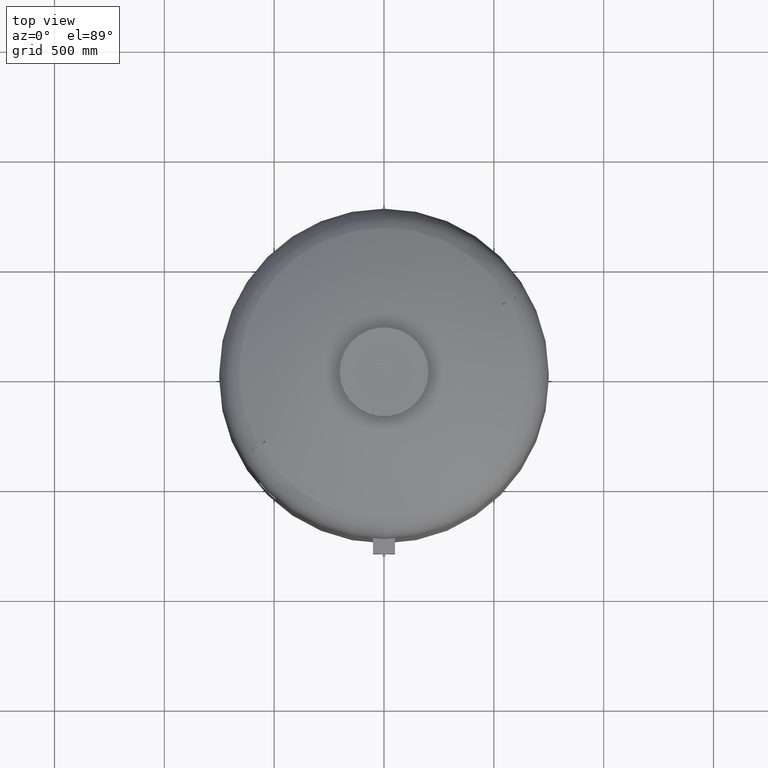
[diagram: clean part render]
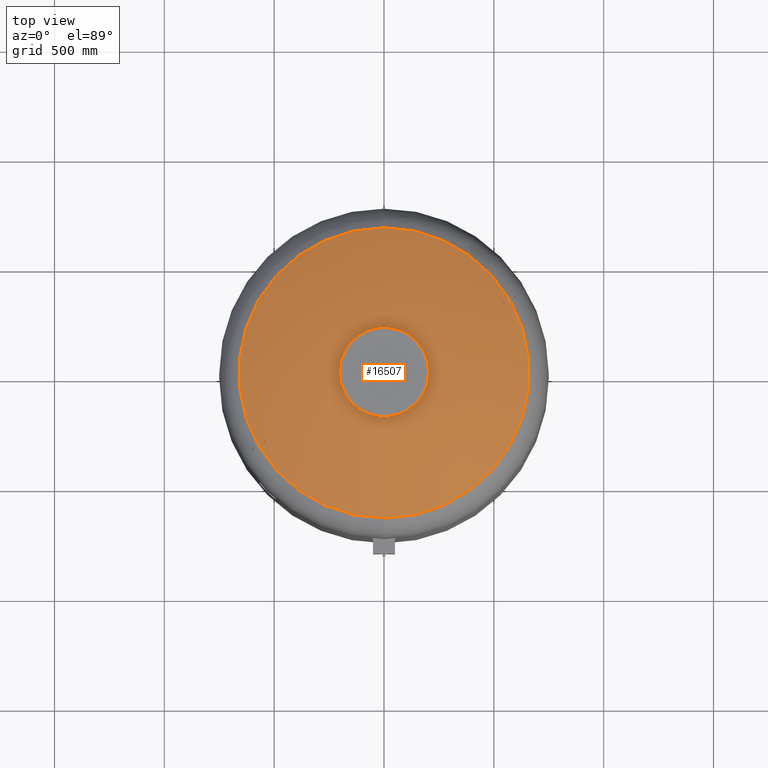
[diagram: same view with one face highlighted and labeled with its STEP entity id]
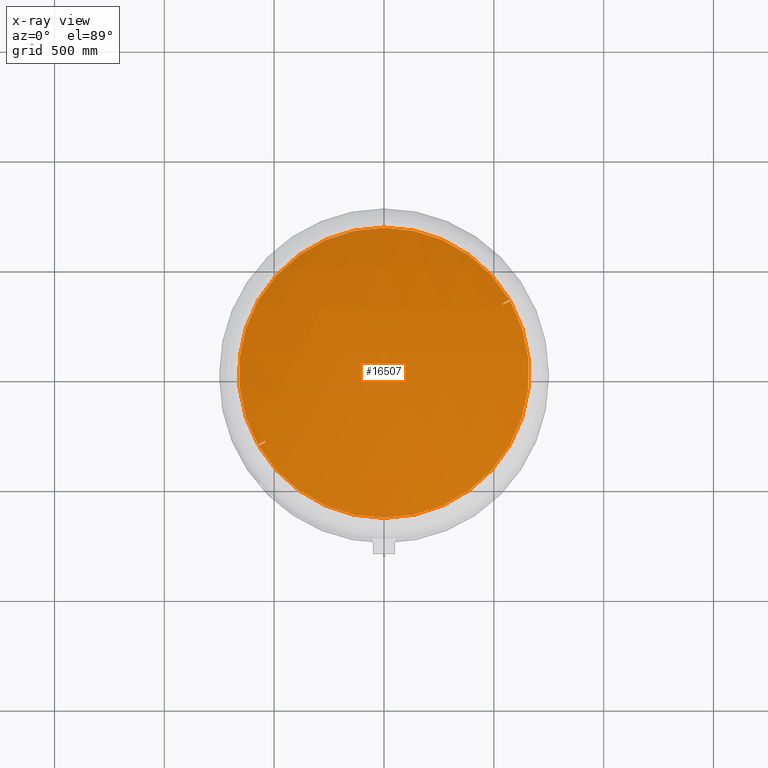
[diagram: x-ray of the same camera — body ghosted, the highlighted face saturated]
A machine part, top view. The second image highlights one B-rep face of the part: STEP entity #16507.
The next image is the same camera in x-ray: the body ghosted, the highlighted face saturated — about 0% of this face is hidden behind the body in this view.
In plain terms, the highlighted spherical surface has radius 1509 mm.
Its self-contained STEP definition (entity closure, byte-faithful):
#15911=CARTESIAN_POINT('',(2.782883E-014,-660.606666666666800,2273.716562866229200));
#15912=VERTEX_POINT('',#15911);
#15928=CARTESIAN_POINT('',(1.087271E-013,660.606666666666800,2273.716562866229200));
#15929=VERTEX_POINT('',#15928);
#15937=CARTESIAN_POINT('',(570.596255916202270,332.898003566943030,2273.716562866229200));
#15938=VERTEX_POINT('',#15937);
#15939=CARTESIAN_POINT('',(7.530601E-015,-2.797401E-014,2273.716562866229200));
#15940=DIRECTION('',(0.0,0.0,-1.0));
#15941=DIRECTION('',(1.0,0.0,0.0));
#15942=AXIS2_PLACEMENT_3D('',#15939,#15940,#15941);
#15943=CIRCLE('',#15942,660.606666666666800);
#15944=EDGE_CURVE('',#15929,#15938,#15943,.T.);
#15973=CARTESIAN_POINT('',(573.596255916202270,327.701851144236400,2273.716562866229200));
#15974=VERTEX_POINT('',#15973);
#15988=CARTESIAN_POINT('',(7.530601E-015,-2.797401E-014,2273.716562866229200));
#15989=DIRECTION('',(0.0,0.0,-1.0));
#15990=DIRECTION('',(1.0,0.0,0.0));
#15991=AXIS2_PLACEMENT_3D('',#15988,#15989,#15990);
#15992=CIRCLE('',#15991,660.606666666666800);
#15993=EDGE_CURVE('',#15974,#15912,#15992,.T.);
#16045=CARTESIAN_POINT('',(-570.596255916196580,-332.898003566952920,2273.716562866229700));
#16046=VERTEX_POINT('',#16045);
#16062=CARTESIAN_POINT('',(-539.004547741172360,-314.658522347942950,2290.879584180558100));
#16063=VERTEX_POINT('',#16062);
#16064=CARTESIAN_POINT('',(1.500000000005994,-2.598076211363742,917.0));
#16065=DIRECTION('',(0.499999999999994,-0.866025403784442,0.0));
#16066=DIRECTION('',(0.0,0.0,1.0));
#16067=AXIS2_PLACEMENT_3D('',#16064,#16065,#16066);
#16068=CIRCLE('',#16067,1508.997017889697400);
#16069=EDGE_CURVE('',#16063,#16046,#16068,.T.);
#16112=CARTESIAN_POINT('',(-542.004547741172470,-309.462369925236320,2290.879584180558100));
#16113=VERTEX_POINT('',#16112);
#16114=CARTESIAN_POINT('',(-195.850324208316520,-113.074237402545550,854.348481320245580));
#16115=DIRECTION('',(0.834590199910602,0.481850876581402,0.266981143436977));
#16116=DIRECTION('',(0.0,0.484652475916135,-0.874706795211036));
#16117=AXIS2_PLACEMENT_3D('',#16114,#16115,#16116);
#16118=CIRCLE('',#16117,1490.641692208577100);
#16119=EDGE_CURVE('',#16113,#16063,#16118,.T.);
#16197=CARTESIAN_POINT('',(-573.596255916196580,-327.701851144246290,2273.716562866229700));
#16198=VERTEX_POINT('',#16197);
#16221=CARTESIAN_POINT('',(-1.499999999993967,2.598076211342912,917.0));
#16222=DIRECTION('',(-0.499999999999994,0.866025403784442,0.0));
#16223=DIRECTION('',(0.0,0.0,-1.0));
#16224=AXIS2_PLACEMENT_3D('',#16221,#16222,#16223);
#16225=CIRCLE('',#16224,1508.997017889697400);
#16226=EDGE_CURVE('',#16198,#16113,#16225,.T.);
#16253=CARTESIAN_POINT('',(7.530601E-015,-2.797401E-014,2273.716562866229200));
#16254=DIRECTION('',(0.0,0.0,-1.0));
#16255=DIRECTION('',(1.0,0.0,0.0));
#16256=AXIS2_PLACEMENT_3D('',#16253,#16254,#16255);
#16257=CIRCLE('',#16256,660.606666666666800);
#16258=EDGE_CURVE('',#15912,#16046,#16257,.T.);
#16263=CARTESIAN_POINT('',(7.530601E-015,-2.797401E-014,2273.716562866229200));
#16264=DIRECTION('',(0.0,0.0,-1.0));
#16265=DIRECTION('',(1.0,0.0,0.0));
#16266=AXIS2_PLACEMENT_3D('',#16263,#16264,#16265);
#16267=CIRCLE('',#16266,660.606666666666800);
#16268=EDGE_CURVE('',#16198,#15929,#16267,.T.);
#16288=CARTESIAN_POINT('',(539.004547741178380,314.658522347932720,2290.879584180558100));
#16289=VERTEX_POINT('',#16288);
#16290=CARTESIAN_POINT('',(-1.499999999993948,2.598076211342792,917.0));
#16291=DIRECTION('',(-0.500000000000006,0.866025403784435,0.0));
#16292=DIRECTION('',(0.0,0.0,-1.0));
#16293=AXIS2_PLACEMENT_3D('',#16290,#16291,#16292);
#16294=CIRCLE('',#16293,1508.997017889697400);
#16295=EDGE_CURVE('',#16289,#15938,#16294,.T.);
#16338=CARTESIAN_POINT('',(542.004547741178380,309.462369925225970,2290.879584180558100));
#16339=VERTEX_POINT('',#16338);
#16340=CARTESIAN_POINT('',(195.850324208315390,113.074237402547780,854.348481320245360));
#16341=DIRECTION('',(-0.834590199910595,-0.481850876581413,0.266981143436977));
#16342=DIRECTION('',(0.0,0.484652475916126,0.874706795211040));
#16343=AXIS2_PLACEMENT_3D('',#16340,#16341,#16342);
#16344=CIRCLE('',#16343,1490.641692208577100);
#16345=EDGE_CURVE('',#16339,#16289,#16344,.T.);
#16476=CARTESIAN_POINT('',(1.500000000006090,-2.598076211363818,917.0));
#16477=DIRECTION('',(0.500000000000006,-0.866025403784435,0.0));
#16478=DIRECTION('',(0.0,0.0,1.0));
#16479=AXIS2_PLACEMENT_3D('',#16476,#16477,#16478);
#16480=CIRCLE('',#16479,1508.997017889697400);
#16481=EDGE_CURVE('',#15974,#16339,#16480,.T.);
#16490=CARTESIAN_POINT('',(1.607048E-013,-2.771988E-013,917.0));
#16491=DIRECTION('',(0.0,-1.0,0.0));
#16492=DIRECTION('',(-1.0,0.0,0.0));
#16493=AXIS2_PLACEMENT_3D('',#16490,#16491,#16492);
#16494=SPHERICAL_SURFACE('',#16493,1509.0);
#16495=ORIENTED_EDGE('',*,*,#16069,.T.);
#16496=ORIENTED_EDGE('',*,*,#16258,.F.);
#16497=ORIENTED_EDGE('',*,*,#15993,.F.);
#16498=ORIENTED_EDGE('',*,*,#16481,.T.);
#16499=ORIENTED_EDGE('',*,*,#16345,.T.);
#16500=ORIENTED_EDGE('',*,*,#16295,.T.);
#16501=ORIENTED_EDGE('',*,*,#15944,.F.);
#16502=ORIENTED_EDGE('',*,*,#16268,.F.);
#16503=ORIENTED_EDGE('',*,*,#16226,.T.);
#16504=ORIENTED_EDGE('',*,*,#16119,.T.);
#16505=EDGE_LOOP('',(#16495,#16496,#16497,#16498,#16499,#16500,#16501,#16502,#16503,#16504));
#16506=FACE_OUTER_BOUND('',#16505,.T.);
#16507=ADVANCED_FACE('',(#16506),#16494,.T.);